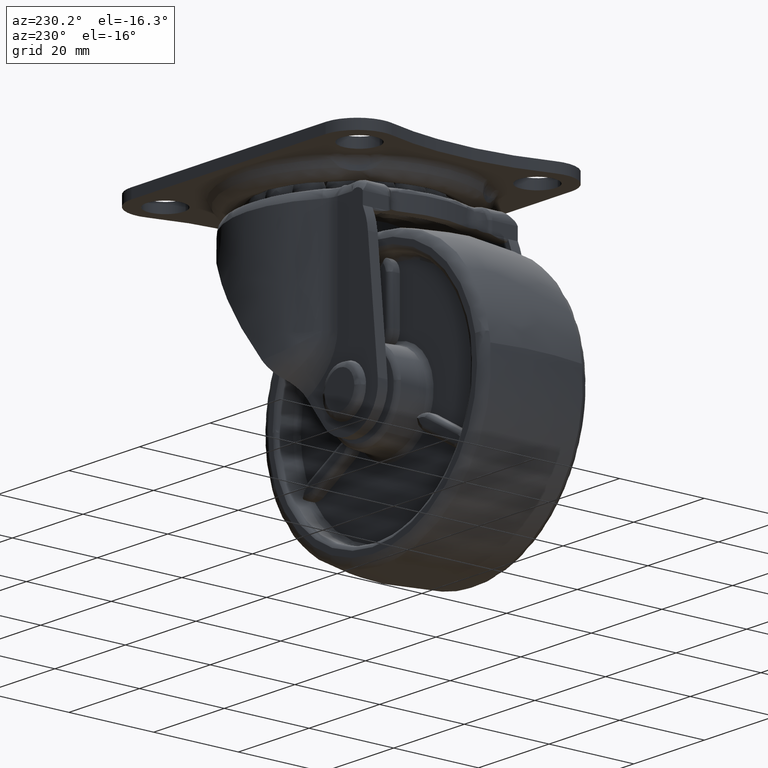
[diagram: clean part render]
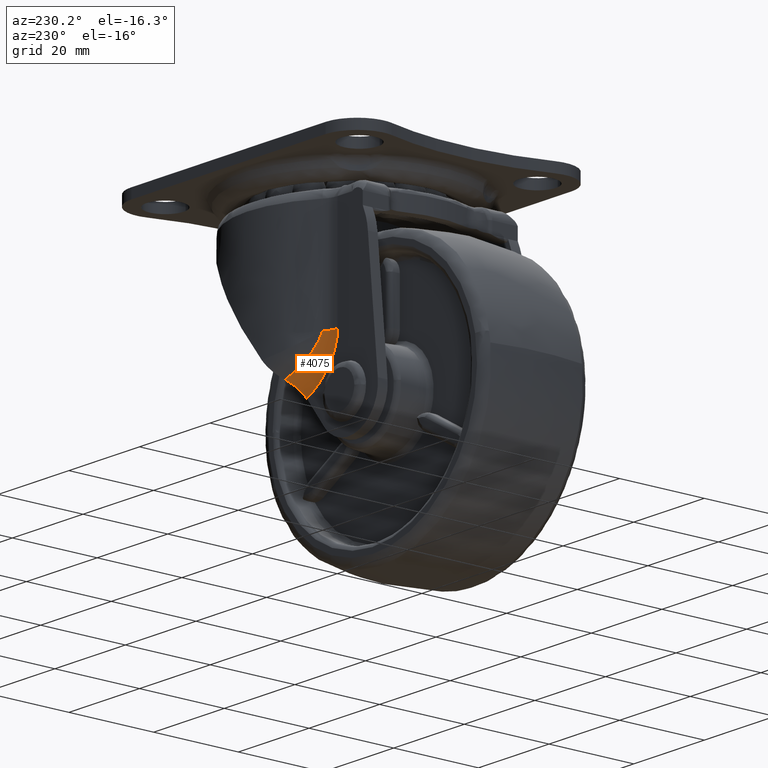
[diagram: same view with one face highlighted and labeled with its STEP entity id]
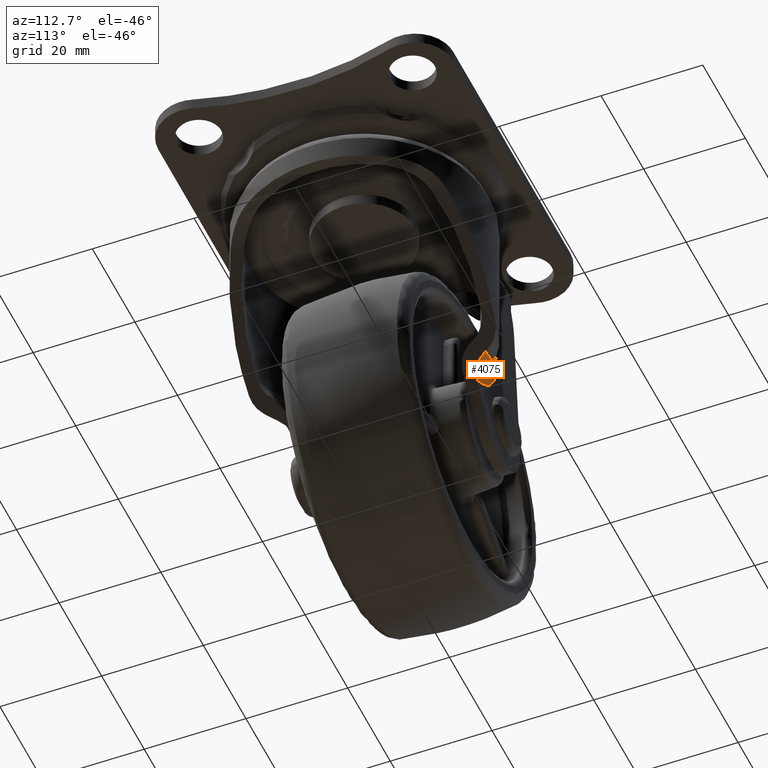
[diagram: same view with one face highlighted and labeled with its STEP entity id]
A machine part, auxiliary view. The second image highlights one B-rep face of the part: STEP entity #4075.
A second angle (auxiliary view) of the same face is appended — the face is thin or edge-on in the first view.
In plain terms, the highlighted face is a freeform B-spline surface patch.
Its self-contained STEP definition (entity closure, byte-faithful):
#3835=CARTESIAN_POINT('',(-18.093094320540150,18.300000000000001,-34.913849834320153));
#3836=VERTEX_POINT('',#3835);
#3843=CARTESIAN_POINT('',(-15.026468455347199,19.350847457627101,-34.913849722187152));
#3844=VERTEX_POINT('',#3843);
#3850=CARTESIAN_POINT('',(-15.026468455347199,19.350847457627101,-34.913849722187152));
#3851=CARTESIAN_POINT('',(-16.379733278434319,18.300000000000029,-34.913849946808334));
#3852=CARTESIAN_POINT('',(-18.093094320540200,18.300000000000040,-34.913849834320182));
#3860=(BOUNDED_CURVE()B_SPLINE_CURVE(2,(#3850,#3851,#3852),.UNSPECIFIED.,.F.,.U.)CURVE()GEOMETRIC_REPRESENTATION_ITEM()QUASI_UNIFORM_CURVE()RATIONAL_B_SPLINE_CURVE((1.0,0.945999605833578,1.0))REPRESENTATION_ITEM(''));
#3861=EDGE_CURVE('',#3844,#3836,#3860,.T.);
#3866=CARTESIAN_POINT('',(-6.486468666652407,21.117336731044428,-42.564634626322288));
#3867=CARTESIAN_POINT('',(-7.493707313256799,21.020152097732026,-42.219887847634439));
#3868=CARTESIAN_POINT('',(-8.450786116201549,20.903925237861287,-41.797985308481302));
#3869=CARTESIAN_POINT('',(-9.811244306340557,20.704991591768362,-41.042784459061636));
#3870=CARTESIAN_POINT('',(-10.252135882840225,20.634533142470922,-40.770472088258629));
#3871=CARTESIAN_POINT('',(-11.107480388700044,20.485330951637032,-40.179943375202157));
#3872=CARTESIAN_POINT('',(-11.513088876499452,20.408115674956498,-39.867747073888673));
#3873=CARTESIAN_POINT('',(-12.277337432555672,20.249694612269337,-39.210261407045259));
#3874=CARTESIAN_POINT('',(-12.636465180982347,20.168408776450164,-38.864720784434759));
#3875=CARTESIAN_POINT('',(-13.137963249630495,20.043756598105531,-38.318283197707480));
#3876=CARTESIAN_POINT('',(-13.299533944428596,20.001571522052174,-38.130620400547990));
#3877=CARTESIAN_POINT('',(-13.606135884931785,19.917204511976863,-37.748867429841447));
#3878=CARTESIAN_POINT('',(-13.750523671313825,19.875219999254156,-37.555697293519742));
#3879=CARTESIAN_POINT('',(-14.156274791629224,19.750142034889624,-36.969213451202762));
#3880=CARTESIAN_POINT('',(-14.390691046344891,19.667874014448991,-36.569007404906223));
#3881=CARTESIAN_POINT('',(-14.775413331890446,19.507933552547545,-35.747992949458812));
#3882=CARTESIAN_POINT('',(-14.925734754527546,19.429527354099310,-35.322486336468110));
#3883=CARTESIAN_POINT('',(-15.017057118945031,19.358137432355889,-34.897601132603860));
#3884=CARTESIAN_POINT('',(-15.020549506729605,19.355407309321617,-34.881352496190516));
#3885=CARTESIAN_POINT('',(-15.024041904579605,19.352677178418855,-34.865103812946948));
#3886=CARTESIAN_POINT('',(-6.488612656733957,21.105406166508288,-42.570096182499086));
#3887=CARTESIAN_POINT('',(-7.496268546647018,21.008555538872752,-42.225353814916467));
#3888=CARTESIAN_POINT('',(-8.453800507382141,20.892736312357872,-41.803417615344181));
#3889=CARTESIAN_POINT('',(-9.814975980765704,20.694520525352814,-41.048027844945729));
#3890=CARTESIAN_POINT('',(-10.256114649390318,20.624322054441162,-40.775627930736889));
#3891=CARTESIAN_POINT('',(-11.111959593295568,20.475680417622225,-40.184856988805087));
#3892=CARTESIAN_POINT('',(-11.517816317338673,20.398760497776443,-39.872507608114006));
#3893=CARTESIAN_POINT('',(-12.282542439909534,20.240956537292053,-39.214638928406849));
#3894=CARTESIAN_POINT('',(-12.641899724139554,20.159993064512193,-38.868867584164036));
#3895=CARTESIAN_POINT('',(-13.143712463101130,20.035842782605503,-38.322012622061536));
#3896=CARTESIAN_POINT('',(-13.305383702353007,19.993829562599473,-38.134197322944999));
#3897=CARTESIAN_POINT('',(-13.612171311435727,19.909809308636682,-37.752114987123356));
#3898=CARTESIAN_POINT('',(-13.756643758876107,19.867998867352821,-37.558768753785550));
#3899=CARTESIAN_POINT('',(-14.162619791855757,19.743445328357083,-36.971719061716705));
#3900=CARTESIAN_POINT('',(-14.397146416003041,19.661527073263706,-36.571088500820380));
#3901=CARTESIAN_POINT('',(-14.781971519591009,19.502277328336206,-35.749111955260993));
#3902=CARTESIAN_POINT('',(-14.932281651335853,19.424214874773305,-35.323060565943699));
#3903=CARTESIAN_POINT('',(-15.023503305050555,19.353140882366944,-34.897578606043069));
#3904=CARTESIAN_POINT('',(-15.026991773192151,19.350422894388100,-34.881307466445158));
#3905=CARTESIAN_POINT('',(-15.030480246362197,19.347704902491461,-34.865036303393424));
#3906=CARTESIAN_POINT('',(-6.992760048709695,18.299999999999994,-43.854350865555404));
#3907=CARTESIAN_POINT('',(-8.094484187132299,18.300000000000001,-43.502014946612192));
#3908=CARTESIAN_POINT('',(-9.152305602550658,18.299999999997656,-43.062210451087097));
#3909=CARTESIAN_POINT('',(-10.668334239638835,18.300000000001170,-42.247083855429253));
#3910=CARTESIAN_POINT('',(-11.161790402544904,18.300000000001191,-41.949238259683455));
#3911=CARTESIAN_POINT('',(-12.121781195921992,18.299999999998803,-41.292614640280668));
#3912=CARTESIAN_POINT('',(-12.578380526651337,18.299999999999997,-40.940496058592998));
#3913=CARTESIAN_POINT('',(-13.438711627787535,18.299999999999997,-40.187001688619368));
#3914=CARTESIAN_POINT('',(-13.843011722235671,18.300000000000004,-39.785369811574832));
#3915=CARTESIAN_POINT('',(-14.404764190756829,18.300000000000004,-39.140037043811539));
#3916=CARTESIAN_POINT('',(-14.585226740406330,18.300000000000004,-38.916776582916924));
#3917=CARTESIAN_POINT('',(-14.925980455106997,18.300000000000008,-38.459052673925747));
#3918=CARTESIAN_POINT('',(-15.085561509836921,18.300000000000011,-38.225706608355829));
#3919=CARTESIAN_POINT('',(-15.530256389179270,18.300000000000004,-37.511792271358985));
#3920=CARTESIAN_POINT('',(-15.781933244953514,18.300000000000001,-37.017519048464266));
#3921=CARTESIAN_POINT('',(-16.175968661993881,18.300000000000004,-35.986965911542470));
#3922=CARTESIAN_POINT('',(-16.317721165318336,18.300000000001191,-35.444577710450851));
#3923=CARTESIAN_POINT('',(-16.382189225961117,18.299999999999955,-34.892830601490992));
#3924=CARTESIAN_POINT('',(-16.384644431386132,18.299999999999901,-34.871817832041238));
#3925=CARTESIAN_POINT('',(-16.387098895045639,18.299999999999855,-34.850811410959615));
#3926=CARTESIAN_POINT('',(-8.135232343257982,18.300000000000004,-46.764661258684121));
#3927=CARTESIAN_POINT('',(-9.400506371168181,18.300000000000001,-46.267711948042916));
#3928=CARTESIAN_POINT('',(-10.603112991047519,18.300000000000011,-45.653880351987063));
#3929=CARTESIAN_POINT('',(-12.301035851623999,18.299999999999990,-44.536517831142156));
#3930=CARTESIAN_POINT('',(-12.849209802606023,18.299999999999994,-44.130983015680904));
#3931=CARTESIAN_POINT('',(-13.904789904341280,18.299999999999994,-43.244168899952264));
#3932=CARTESIAN_POINT('',(-14.401252647722217,18.300000000000008,-42.771908903129649));
#3933=CARTESIAN_POINT('',(-15.324018091836740,18.300000000000004,-41.768713050487023));
#3934=CARTESIAN_POINT('',(-15.750966167461019,18.299999999999994,-41.237428160034497));
#3935=CARTESIAN_POINT('',(-16.331978577120061,18.299999999999994,-40.389286675589084));
#3936=CARTESIAN_POINT('',(-16.516398500140820,18.299999999999990,-40.096725086548012));
#3937=CARTESIAN_POINT('',(-16.859583107984228,18.300000000000001,-39.498618010175264));
#3938=CARTESIAN_POINT('',(-17.017655543351772,18.300000000000004,-39.194525632256216));
#3939=CARTESIAN_POINT('',(-17.449282468555936,18.300000000000004,-38.266372009991414));
#3940=CARTESIAN_POINT('',(-17.681011004787056,18.300000000000004,-37.626724558934200));
#3941=CARTESIAN_POINT('',(-18.007986594532582,18.300000000000004,-36.296554634090953));
#3942=CARTESIAN_POINT('',(-18.101667557494345,18.300000000000004,-35.598306688044836));
#3943=CARTESIAN_POINT('',(-18.101389180665741,18.300000000000001,-34.886634211124537));
#3944=CARTESIAN_POINT('',(-18.101378535068218,18.300000000000004,-34.859418660186073));
#3945=CARTESIAN_POINT('',(-18.101367889455084,18.299999999999990,-34.832203069371630));
#3946=CARTESIAN_POINT('',(-8.140170480034197,18.300000000000001,-46.777240566603496));
#3947=CARTESIAN_POINT('',(-9.406189592181676,18.299999999999990,-46.279747017207590));
#3948=CARTESIAN_POINT('',(-10.609476444559082,18.300000000000022,-45.665247795427497));
#3949=CARTESIAN_POINT('',(-12.308292449790923,18.299999999999994,-44.546693298765575));
#3950=CARTESIAN_POINT('',(-12.856744276736578,18.299999999999979,-44.140724695445265));
#3951=CARTESIAN_POINT('',(-13.912828209763086,18.300000000000018,-43.252967056188091));
#3952=CARTESIAN_POINT('',(-14.409511133893050,18.300000000000001,-42.780206082879602));
#3953=CARTESIAN_POINT('',(-15.332644651959056,18.299999999999990,-41.775950456404559));
#3954=CARTESIAN_POINT('',(-15.759740288094386,18.300000000000008,-41.244105748772526));
#3955=CARTESIAN_POINT('',(-16.340908796257754,18.300000000000001,-40.395075379247807));
#3956=CARTESIAN_POINT('',(-16.525369870912073,18.300000000000011,-40.102206605974615));
#3957=CARTESIAN_POINT('',(-16.868611282975529,18.299999999999994,-39.503471839764593));
#3958=CARTESIAN_POINT('',(-17.026699219575534,18.299999999999997,-39.199060445479361));
#3959=CARTESIAN_POINT('',(-17.458331445948719,18.299999999999990,-38.269930156005827));
#3960=CARTESIAN_POINT('',(-17.690008859062271,18.300000000000011,-37.629610982293372));
#3961=CARTESIAN_POINT('',(-18.016746719592618,18.300000000000004,-36.298034988556097));
#3962=CARTESIAN_POINT('',(-18.110235738846608,18.299999999999983,-35.599045038571987));
#3963=CARTESIAN_POINT('',(-18.109679463549295,18.300000000000008,-34.886604331046385));
#3964=CARTESIAN_POINT('',(-18.109658190224653,18.299999999999997,-34.859358860088300));
#3965=CARTESIAN_POINT('',(-18.109636916837704,18.300000000000008,-34.832113309312618));
#3973=(BOUNDED_SURFACE()B_SPLINE_SURFACE(3,2,((#3866,#3886,#3906,#3926,#3946),(#3867,#3887,#3907,#3927,#3947),(#3868,#3888,#3908,#3928,#3948),(#3869,#3889,#3909,#3929,#3949),(#3870,#3890,#3910,#3930,#3950),(#3871,#3891,#3911,#3931,#3951),(#3872,#3892,#3912,#3932,#3952),(#3873,#3893,#3913,#3933,#3953),(#3874,#3894,#3914,#3934,#3954),(#3875,#3895,#3915,#3935,#3955),(#3876,#3896,#3916,#3936,#3956),(#3877,#3897,#3917,#3937,#3957),(#3878,#3898,#3918,#3938,#3958),(#3879,#3899,#3919,#3939,#3959),(#3880,#3900,#3920,#3940,#3960),(#3881,#3901,#3921,#3941,#3961),(#3882,#3902,#3922,#3942,#3962),(#3883,#3903,#3923,#3943,#3963),(#3884,#3904,#3924,#3944,#3964),(#3885,#3905,#3925,#3945,#3965)),.UNSPECIFIED.,.F.,.F.,.U.)B_SPLINE_SURFACE_WITH_KNOTS((4,2,2,2,2,2,2,2,2,4),(3,1,1,3),(0.0,4.144777413676948,6.217166120515424,8.289554827353900,10.361943534192379,11.398137887611620,12.434332241030850,14.506720947869329,16.579109654707800,16.661510799142810),(0.0,0.028829150955173,5.746042680343734,5.775346945835357),.UNSPECIFIED.)GEOMETRIC_REPRESENTATION_ITEM()RATIONAL_B_SPLINE_SURFACE(((1.001523711973893,1.000761855986946,0.848913574916311,1.000774411641278,1.001548823282557),(1.001466327466172,1.000733163733086,0.854603639886116,1.000745246528994,1.001490493057988),(1.001398404902163,1.000699202451082,0.861338624945264,1.000710725553130,1.001421451106260),(1.001283793490357,1.000641896745178,0.872703127410528,1.000652475429060,1.001304950858120),(1.001243456452179,1.000621728226090,0.876702819610285,1.000631974525691,1.001263949051382),(1.001158692079145,1.000579346039573,0.885107784797677,1.000588893865850,1.001177787731699),(1.001115135749932,1.000557567874966,0.889426691640490,1.000566756789439,1.001133513578878),(1.001026459351909,1.000513229675954,0.898219560762941,1.000521687881330,1.001043375762660),(1.000981293853382,1.000490646926691,0.902698027708388,1.000498732960425,1.000997465920849),(1.000912569671666,1.000456284835833,0.909512498625600,1.000463804570237,1.000927609140473),(1.000889401008861,1.000444700504431,0.911809829418526,1.000452029324983,1.000904058649965),(1.000843243844072,1.000421621922036,0.916386626831346,1.000428570399442,1.000857140798884),(1.000820362562713,1.000410181281356,0.918655461795630,1.000416941212984,1.000833882425969),(1.000752449168639,1.000376224584320,0.925389537593211,1.000382424897650,1.000764849795301),(1.000708119142024,1.000354059571012,0.929785161805581,1.000359894597136,1.000719789194272),(1.000622518829885,1.000311259414943,0.938273016051486,1.000316389079457,1.000632778158915),(1.000580857920391,1.000290428960195,0.942403979113497,1.000295215331497,1.000590430662995),(1.000543154066945,1.000271577033473,0.946142573104014,1.000276052718399,1.000552105436798),(1.000541712236935,1.000270856118468,0.946285540374449,1.000275319922461,1.000550639844923),(1.000540270406925,1.000270135203462,0.946428507644883,1.000274587126524,1.000549174253047)))REPRESENTATION_ITEM('')SURFACE());
#3974=CARTESIAN_POINT('',(-9.354857214115999,18.300000000000001,-46.224711651919897));
#3975=VERTEX_POINT('',#3974);
#3976=CARTESIAN_POINT('',(-6.562821353687130,21.086517205700051,-42.550759394602053));
#3977=VERTEX_POINT('',#3976);
#3978=CARTESIAN_POINT('',(-9.354857214115990,18.300000000000001,-46.224711651919897));
#3979=CARTESIAN_POINT('',(-9.210645392571967,18.300000000000001,-46.034947847377587));
#3980=CARTESIAN_POINT('',(-9.068105350156085,18.316217961943121,-45.847383884459397));
#3981=CARTESIAN_POINT('',(-8.786221851476135,18.379664030460109,-45.476462245896762));
#3982=CARTESIAN_POINT('',(-8.646878844256063,18.426896493219079,-45.293105161135323));
#3983=CARTESIAN_POINT('',(-8.440292596238207,18.521301812280491,-45.021264808726862));
#3984=CARTESIAN_POINT('',(-8.371830838754693,18.556713303965608,-44.931178133261362));
#3985=CARTESIAN_POINT('',(-8.235765948026424,18.635627198405938,-44.752134618986410));
#3986=CARTESIAN_POINT('',(-8.168939557314458,18.678678418928548,-44.664199871269062));
#3987=CARTESIAN_POINT('',(-7.971984979026989,18.818336043603392,-44.405033530412240));
#3988=CARTESIAN_POINT('',(-7.845364746349311,18.925396823610619,-44.238417944895787));
#3989=CARTESIAN_POINT('',(-7.601414538996925,19.167205127549039,-43.917411532450267));
#3990=CARTESIAN_POINT('',(-7.484064908083894,19.301969590379048,-43.762994840494841));
#3991=CARTESIAN_POINT('',(-7.259211275182080,19.600537553196158,-43.467117010315818));
#3992=CARTESIAN_POINT('',(-7.049485708310193,19.921125466556120,-43.191145726871071));
#3993=CARTESIAN_POINT('',(-6.869114772806055,20.284441084147520,-42.953801280461228));
#3994=CARTESIAN_POINT('',(-6.745178111415306,20.573436196670659,-42.790716922077998));
#3995=CARTESIAN_POINT('',(-6.705746874950689,20.672573245977389,-42.738830597023501));
#3996=CARTESIAN_POINT('',(-6.630892024839995,20.876404705010302,-42.640331451853797));
#3997=CARTESIAN_POINT('',(-6.595719928580402,20.980408500453279,-42.594049595564293));
#3998=CARTESIAN_POINT('',(-6.562821353687130,21.086517205700051,-42.550759394602053));
#3999=B_SPLINE_CURVE_WITH_KNOTS('',3,(#3978,#3979,#3980,#3981,#3982,#3983,#3984,#3985,#3986,#3987,#3988,#3989,#3990,#3991,#3992,#3993,#3994,#3995,#3996,#3997,#3998),.UNSPECIFIED.,.F.,.U.,(4,2,2,2,2,2,2,1,2,2,4),(0.0,0.124999999999999,0.249999999999997,0.312499999999998,0.374999999999998,0.499999999999998,0.624999999999998,0.749999999999998,0.874999999999998,0.937499999999999,1.0),.UNSPECIFIED.);
#4000=EDGE_CURVE('',#3975,#3977,#3999,.T.);
#4001=ORIENTED_EDGE('',*,*,#4000,.F.);
#4002=CARTESIAN_POINT('',(-18.093094320540150,18.300000000000001,-34.913849834320153));
#4003=CARTESIAN_POINT('',(-18.093094315890500,18.300000000000011,-35.231405241239713));
#4004=CARTESIAN_POINT('',(-18.073438999278029,18.300000000000001,-35.547433473866157));
#4005=CARTESIAN_POINT('',(-18.017601705281191,18.300000000000001,-36.019428150467427));
#4006=CARTESIAN_POINT('',(-17.994503461170229,18.300000000000001,-36.176797554267232));
#4007=CARTESIAN_POINT('',(-17.940318156789889,18.300000000000001,-36.488303585174741));
#4008=CARTESIAN_POINT('',(-17.909240442899460,18.300000000000001,-36.642571473109172));
#4009=CARTESIAN_POINT('',(-17.804900642644210,18.299999999999990,-37.101235977834918));
#4010=CARTESIAN_POINT('',(-17.720573459262461,18.300000000000001,-37.401508924449978));
#4011=CARTESIAN_POINT('',(-17.525616725432670,18.300000000000001,-37.992252618343642));
#4012=CARTESIAN_POINT('',(-17.414970377934871,18.300000000000001,-38.282717105804281));
#4013=CARTESIAN_POINT('',(-17.169413994180879,18.300000000000001,-38.854603643090627));
#4014=CARTESIAN_POINT('',(-17.034494892811608,18.300000000000001,-39.136022314587507));
#4015=CARTESIAN_POINT('',(-16.814872291822081,18.300000000000001,-39.551723956312657));
#4016=CARTESIAN_POINT('',(-16.738785523210652,18.300000000000001,-39.689218155201971));
#4017=CARTESIAN_POINT('',(-16.580958807726280,18.300000000000011,-39.962099762361142));
#4018=CARTESIAN_POINT('',(-16.499174205609641,18.300000000000001,-40.097528762378452));
#4019=CARTESIAN_POINT('',(-16.080136913830120,18.300000000000001,-40.763670711368590));
#4020=CARTESIAN_POINT('',(-15.710073004180201,18.300000000000001,-41.266551315287572));
#4021=CARTESIAN_POINT('',(-14.910197795021940,18.300000000000001,-42.220800013488578));
#4022=CARTESIAN_POINT('',(-14.480283535157600,18.300000000000001,-42.672079338263757));
#4023=CARTESIAN_POINT('',(-13.908374397526631,18.300000000000001,-43.206419505597687));
#4024=CARTESIAN_POINT('',(-13.792257639516460,18.300000000000001,-43.311791731072077));
#4025=CARTESIAN_POINT('',(-13.556594641551619,18.300000000000001,-43.519579379687983));
#4026=CARTESIAN_POINT('',(-13.436891509461169,18.300000000000001,-43.622123925353662));
#4027=CARTESIAN_POINT('',(-13.073899192593800,18.300000000000001,-43.924355046344537));
#4028=CARTESIAN_POINT('',(-12.827135880361640,18.300000000000001,-44.118347108423933));
#4029=CARTESIAN_POINT('',(-12.073328975446270,18.300000000000001,-44.679076397503188));
#4030=CARTESIAN_POINT('',(-11.552819059691350,18.300000000000001,-45.024646334857927));
#4031=CARTESIAN_POINT('',(-10.478521335803229,18.300000000000001,-45.663477737314217));
#4032=CARTESIAN_POINT('',(-9.924717592354648,18.300000000000001,-45.956714154194792));
#4033=CARTESIAN_POINT('',(-9.354857214115979,18.300000000000001,-46.224711651919897));
#4034=B_SPLINE_CURVE_WITH_KNOTS('',3,(#4002,#4003,#4004,#4005,#4006,#4007,#4008,#4009,#4010,#4011,#4012,#4013,#4014,#4015,#4016,#4017,#4018,#4019,#4020,#4021,#4022,#4023,#4024,#4025,#4026,#4027,#4028,#4029,#4030,#4031,#4032,#4033),.UNSPECIFIED.,.F.,.U.,(4,2,2,2,2,2,2,2,2,2,2,2,2,2,2,4),(0.0,0.062500000000001,0.093750000000002,0.125000000000002,0.187500000000003,0.250000000000003,0.312500000000003,0.343750000000002,0.375000000000001,0.500000000000000,0.624999999999999,0.656249999999999,0.687499999999999,0.749999999999999,0.875000000000000,1.0),.UNSPECIFIED.);
#4035=EDGE_CURVE('',#3836,#3975,#4034,.T.);
#4036=ORIENTED_EDGE('',*,*,#4035,.F.);
#4037=ORIENTED_EDGE('',*,*,#3861,.F.);
#4038=CARTESIAN_POINT('',(-6.562821353687130,21.086517205700051,-42.550759394602053));
#4039=CARTESIAN_POINT('',(-7.034139480390232,21.040857187400398,-42.387440916178107));
#4040=CARTESIAN_POINT('',(-7.495991533911254,20.990870091428029,-42.206410757897373));
#4041=CARTESIAN_POINT('',(-8.400416047004327,20.882797331001960,-41.808087874137591));
#4042=CARTESIAN_POINT('',(-8.842994494095967,20.824712810370158,-41.590806773063562));
#4043=CARTESIAN_POINT('',(-9.707854963703152,20.700776283053631,-41.117868975361397));
#4044=CARTESIAN_POINT('',(-10.130151005314360,20.634926796237931,-40.862239537803319));
#4045=CARTESIAN_POINT('',(-10.644104207437030,20.547794014873858,-40.516255807343079));
#4046=CARTESIAN_POINT('',(-10.746299432553380,20.530106877508612,-40.445655195479119));
#4047=CARTESIAN_POINT('',(-10.948465052579049,20.494386153823299,-40.302272456408147));
#4048=CARTESIAN_POINT('',(-11.048491044191930,20.476343937406561,-40.229456899145582));
#4049=CARTESIAN_POINT('',(-11.345350456924470,20.421682771136439,-40.007581943583112));
#4050=CARTESIAN_POINT('',(-11.538970001470300,20.384529806759161,-39.855099317207980));
#4051=CARTESIAN_POINT('',(-12.106432084805331,20.271004614940210,-39.383344671589377));
#4052=CARTESIAN_POINT('',(-12.467001578883499,20.192574634960540,-39.049900254318892));
#4053=CARTESIAN_POINT('',(-12.977385321549640,20.070942491861111,-38.517025163020953));
#4054=CARTESIAN_POINT('',(-13.142409396413210,20.029731847196789,-38.333921135365927));
#4055=CARTESIAN_POINT('',(-13.381445877312579,19.966912086315588,-38.050115681100003));
#4056=CARTESIAN_POINT('',(-13.459660684642580,19.945813984401681,-37.954023695478412));
#4057=CARTESIAN_POINT('',(-13.612066633098420,19.903567676590640,-37.759911481416587));
#4058=CARTESIAN_POINT('',(-13.686387070837039,19.882385976558609,-37.661740813068512));
#4059=CARTESIAN_POINT('',(-13.903453472957310,19.818689355517861,-37.363732243703467));
#4060=CARTESIAN_POINT('',(-14.040334940621459,19.776021336694399,-37.160416298008329));
#4061=CARTESIAN_POINT('',(-14.296527243657080,19.690434173257739,-36.743321642365011));
#4062=CARTESIAN_POINT('',(-14.415864422544299,19.647513039574950,-36.529559099937842));
#4063=CARTESIAN_POINT('',(-14.579328792106431,19.583112936728821,-36.199619463390142));
#4064=CARTESIAN_POINT('',(-14.631214770021760,19.561643885594702,-36.088083007114982));
#4065=CARTESIAN_POINT('',(-14.729169432682680,19.518743838200241,-35.861521445587599));
#4066=CARTESIAN_POINT('',(-14.775295908981860,19.497285124555141,-35.746347852199051));
#4067=CARTESIAN_POINT('',(-14.903331588509991,19.433233442362649,-35.395803623427668));
#4068=CARTESIAN_POINT('',(-14.974313647949259,19.391347087591480,-35.157724883667392));
#4069=CARTESIAN_POINT('',(-15.026468455347199,19.350847457627101,-34.913849722187152));
#4070=B_SPLINE_CURVE_WITH_KNOTS('',3,(#4038,#4039,#4040,#4041,#4042,#4043,#4044,#4045,#4046,#4047,#4048,#4049,#4050,#4051,#4052,#4053,#4054,#4055,#4056,#4057,#4058,#4059,#4060,#4061,#4062,#4063,#4064,#4065,#4066,#4067,#4068,#4069),.UNSPECIFIED.,.F.,.U.,(4,2,2,2,2,2,2,2,2,2,2,2,2,2,2,4),(0.0,0.125000000000000,0.250000000000001,0.375000000000001,0.406250000000001,0.437500000000001,0.500000000000000,0.624999999999998,0.687499999999996,0.718749999999996,0.749999999999995,0.812499999999995,0.874999999999995,0.906249999999996,0.937499999999997,1.0),.UNSPECIFIED.);
#4071=EDGE_CURVE('',#3977,#3844,#4070,.T.);
#4072=ORIENTED_EDGE('',*,*,#4071,.F.);
#4073=EDGE_LOOP('',(#4001,#4036,#4037,#4072));
#4074=FACE_OUTER_BOUND('',#4073,.T.);
#4075=ADVANCED_FACE('',(#4074),#3973,.F.);